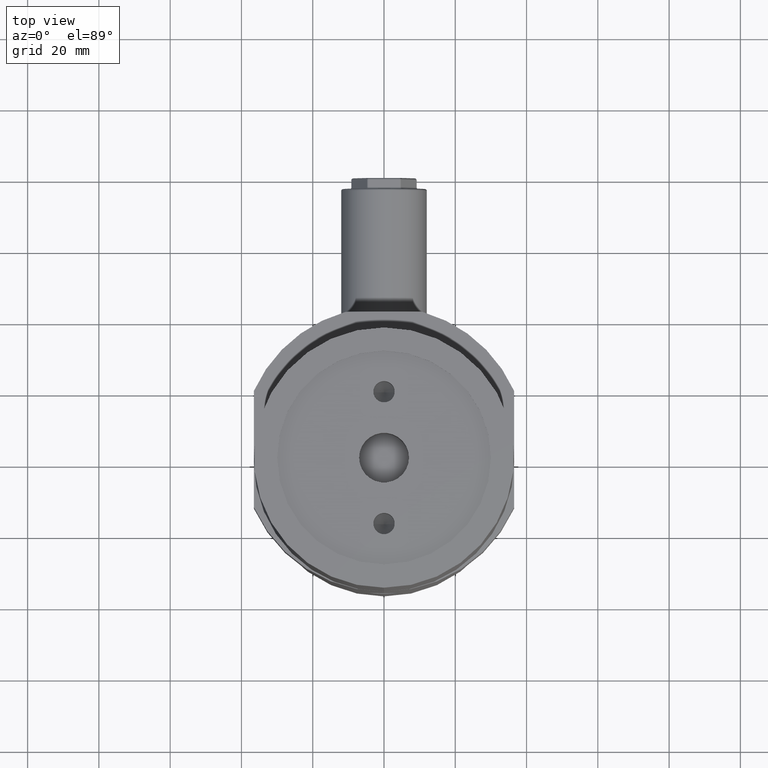
[diagram: clean part render]
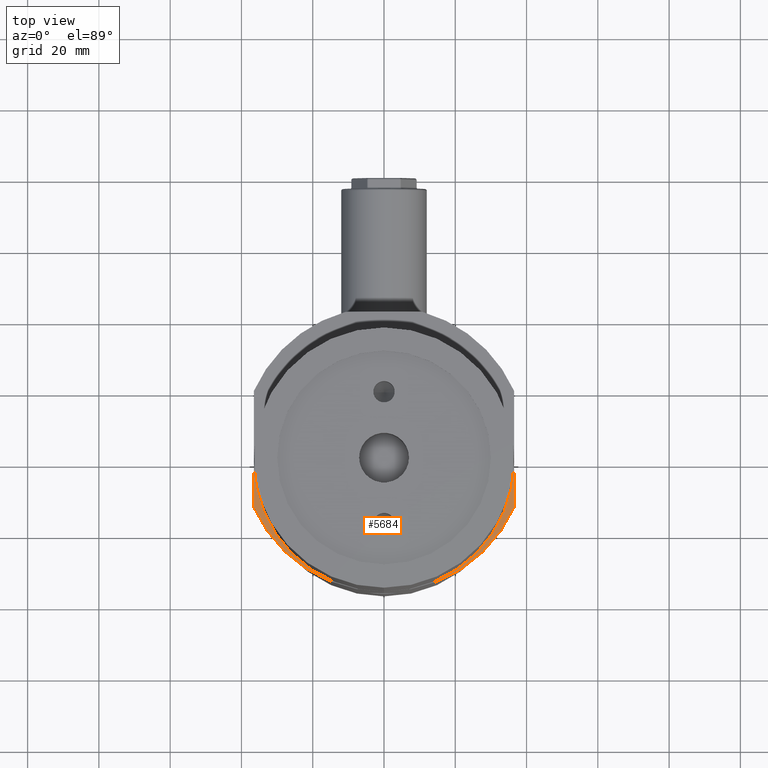
[diagram: same view with one face highlighted and labeled with its STEP entity id]
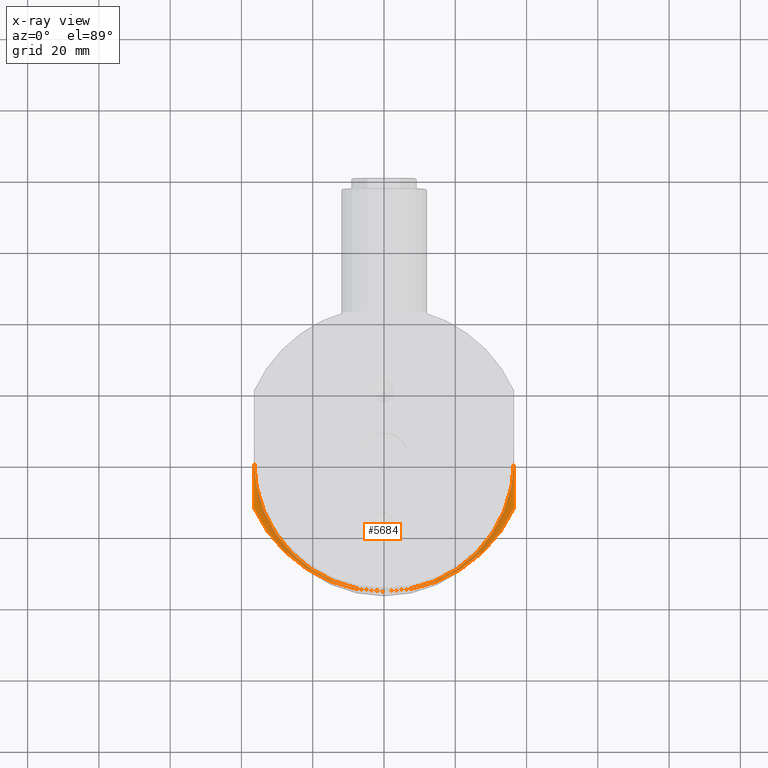
[diagram: x-ray of the same camera — body ghosted, the highlighted face saturated]
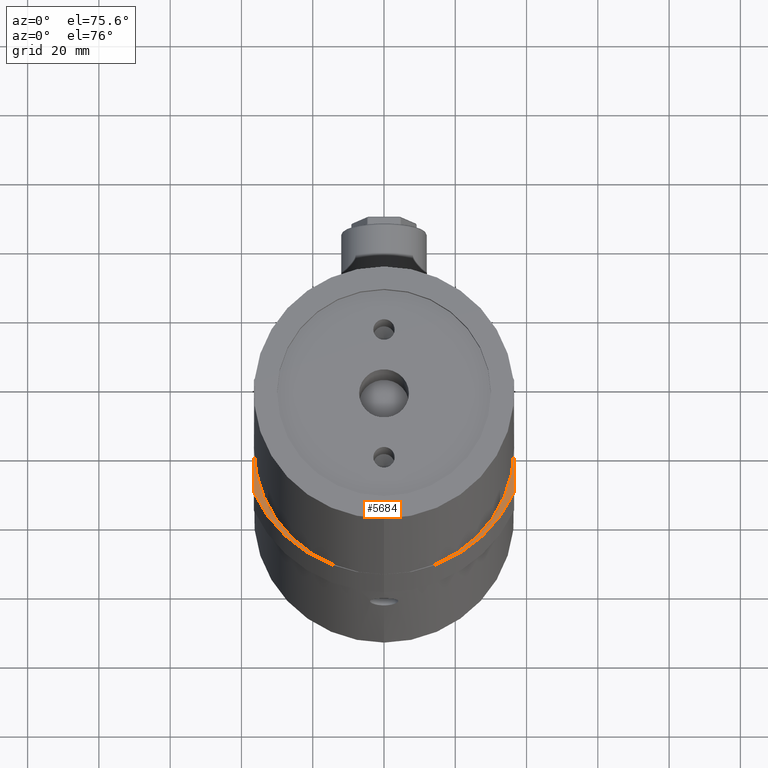
[diagram: same view with one face highlighted and labeled with its STEP entity id]
A machine part, top view. The second image highlights one B-rep face of the part: STEP entity #5684.
The next image is the same camera in x-ray: the body ghosted, the highlighted face saturated — about 1% of this face is hidden behind the body in this view.
A second angle (auxiliary view) of the same face is appended — the face is thin or edge-on in the first view.
In plain terms, the highlighted planar face has unit normal (-0, 0, -1).
Its self-contained STEP definition (entity closure, byte-faithful):
#266 = VERTEX_POINT ( 'NONE', #4450 ) ;
#377 = CARTESIAN_POINT ( 'NONE',  ( -2.996843193803814800E-030, 3.490000000000000200, -63.00000000000000000 ) ) ;
#502 = VERTEX_POINT ( 'NONE', #2658 ) ;
#508 = LINE ( 'NONE', #1141, #3121 ) ;
#688 = FACE_OUTER_BOUND ( 'NONE', #3918, .T. ) ;
#814 = VECTOR ( 'NONE', #5088, 1000.000000000000000 ) ;
#947 = DIRECTION ( 'NONE',  ( 0.0000000000000000000, 1.000000000000000000, 0.0000000000000000000 ) ) ;
#994 = DIRECTION ( 'NONE',  ( 0.0000000000000000000, 1.000000000000000000, 0.0000000000000000000 ) ) ;
#1141 = CARTESIAN_POINT ( 'NONE',  ( -36.50000000000000000, 3.490000000000000200, -63.00000000000000000 ) ) ;
#1185 = DIRECTION ( 'NONE',  ( -2.120291204249984900E-016, -1.000000000000000000, -1.224606353822383900E-016 ) ) ;
#1354 = AXIS2_PLACEMENT_3D ( 'NONE', #1503, #3981, #947 ) ;
#1503 = CARTESIAN_POINT ( 'NONE',  ( -2.996843193803814800E-030, 7.715020029081028800E-015, -63.00000000000000000 ) ) ;
#1566 = AXIS2_PLACEMENT_3D ( 'NONE', #5592, #4591, #5569 ) ;
#1792 = AXIS2_PLACEMENT_3D ( 'NONE', #377, #2427, #5004 ) ;
#1816 = CARTESIAN_POINT ( 'NONE',  ( 36.50000000000000000, -12.87306817195360000, -63.00000000000000000 ) ) ;
#1898 = AXIS2_PLACEMENT_3D ( 'NONE', #6042, #1923, #994 ) ;
#1923 = DIRECTION ( 'NONE',  ( -4.756893958418750000E-032, 1.224606353822383900E-016, -1.000000000000000000 ) ) ;
#1937 = CIRCLE ( 'NONE', #1792, 40.00000000000000000 ) ;
#1974 = CIRCLE ( 'NONE', #1898, 36.50000000000000000 ) ;
#2289 = VERTEX_POINT ( 'NONE', #4203 ) ;
#2427 = DIRECTION ( 'NONE',  ( -4.756893958418750000E-032, 1.224606353822383900E-016, -1.000000000000000000 ) ) ;
#2591 = EDGE_CURVE ( 'NONE', #502, #6245, #1937, .T. ) ;
#2658 = CARTESIAN_POINT ( 'NONE',  ( -3.472532589645689400E-030, -36.50999999999999800, -63.00000000000000000 ) ) ;
#2751 = EDGE_CURVE ( 'NONE', #4195, #2289, #4852, .T. ) ;
#3100 = CARTESIAN_POINT ( 'NONE',  ( 36.50000000000000000, 19.85306817195360200, -63.00000000000000000 ) ) ;
#3121 = VECTOR ( 'NONE', #1185, 1000.000000000000000 ) ;
#3254 = ORIENTED_EDGE ( 'NONE', *, *, #4653, .T. ) ;
#3360 = CARTESIAN_POINT ( 'NONE',  ( -2.996843193803814800E-030, 3.490000000000000200, -63.00000000000000000 ) ) ;
#3367 = EDGE_CURVE ( 'NONE', #2289, #266, #6161, .T. ) ;
#3395 = ORIENTED_EDGE ( 'NONE', *, *, #3652, .T. ) ;
#3652 = EDGE_CURVE ( 'NONE', #3724, #6245, #508, .T. ) ;
#3724 = VERTEX_POINT ( 'NONE', #6473 ) ;
#3771 = ORIENTED_EDGE ( 'NONE', *, *, #6381, .F. ) ;
#3918 = EDGE_LOOP ( 'NONE', ( #4471, #3254, #3395, #6510, #3771, #4371 ) ) ;
#3981 = DIRECTION ( 'NONE',  ( -4.756893958418750000E-032, 1.224606353822383900E-016, -1.000000000000000000 ) ) ;
#4195 = VERTEX_POINT ( 'NONE', #1816 ) ;
#4203 = CARTESIAN_POINT ( 'NONE',  ( 36.50000000000000000, 1.465391393298826200E-014, -63.00000000000000000 ) ) ;
#4243 = CARTESIAN_POINT ( 'NONE',  ( -36.50000000000000000, -12.87306817195356100, -63.00000000000000000 ) ) ;
#4371 = ORIENTED_EDGE ( 'NONE', *, *, #2751, .T. ) ;
#4450 = CARTESIAN_POINT ( 'NONE',  ( -1.498421596901906500E-030, -36.49999999999999300, -63.00000000000000000 ) ) ;
#4453 = AXIS2_PLACEMENT_3D ( 'NONE', #3360, #4913, #5419 ) ;
#4471 = ORIENTED_EDGE ( 'NONE', *, *, #3367, .T. ) ;
#4591 = DIRECTION ( 'NONE',  ( -4.756893958418750000E-032, 1.224606353822383900E-016, -1.000000000000000000 ) ) ;
#4653 = EDGE_CURVE ( 'NONE', #266, #3724, #1974, .T. ) ;
#4852 = LINE ( 'NONE', #3100, #814 ) ;
#4913 = DIRECTION ( 'NONE',  ( -4.756893958418750000E-032, 1.224606353822383900E-016, -1.000000000000000000 ) ) ;
#5004 = DIRECTION ( 'NONE',  ( 0.0000000000000000000, 1.000000000000000000, 0.0000000000000000000 ) ) ;
#5088 = DIRECTION ( 'NONE',  ( -2.120291204249984900E-016, 1.000000000000000000, 1.224606353822383900E-016 ) ) ;
#5419 = DIRECTION ( 'NONE',  ( 0.0000000000000000000, 1.000000000000000000, 0.0000000000000000000 ) ) ;
#5528 = PLANE ( 'NONE',  #1566 ) ;
#5569 = DIRECTION ( 'NONE',  ( 0.0000000000000000000, 1.000000000000000000, 1.224606353822383900E-016 ) ) ;
#5592 = CARTESIAN_POINT ( 'NONE',  ( -2.996843193803814800E-030, 3.490000000000000200, -63.00000000000000000 ) ) ;
#5684 = ADVANCED_FACE ( 'NONE', ( #688 ), #5528, .F. ) ;
#5747 = CIRCLE ( 'NONE', #4453, 40.00000000000000000 ) ;
#6042 = CARTESIAN_POINT ( 'NONE',  ( -2.996843193803814800E-030, 7.715020029081028800E-015, -63.00000000000000000 ) ) ;
#6161 = CIRCLE ( 'NONE', #1354, 36.50000000000000000 ) ;
#6245 = VERTEX_POINT ( 'NONE', #4243 ) ;
#6381 = EDGE_CURVE ( 'NONE', #4195, #502, #5747, .T. ) ;
#6473 = CARTESIAN_POINT ( 'NONE',  ( -36.50000000000000000, 1.465391393298826200E-014, -63.00000000000000000 ) ) ;
#6510 = ORIENTED_EDGE ( 'NONE', *, *, #2591, .F. ) ;